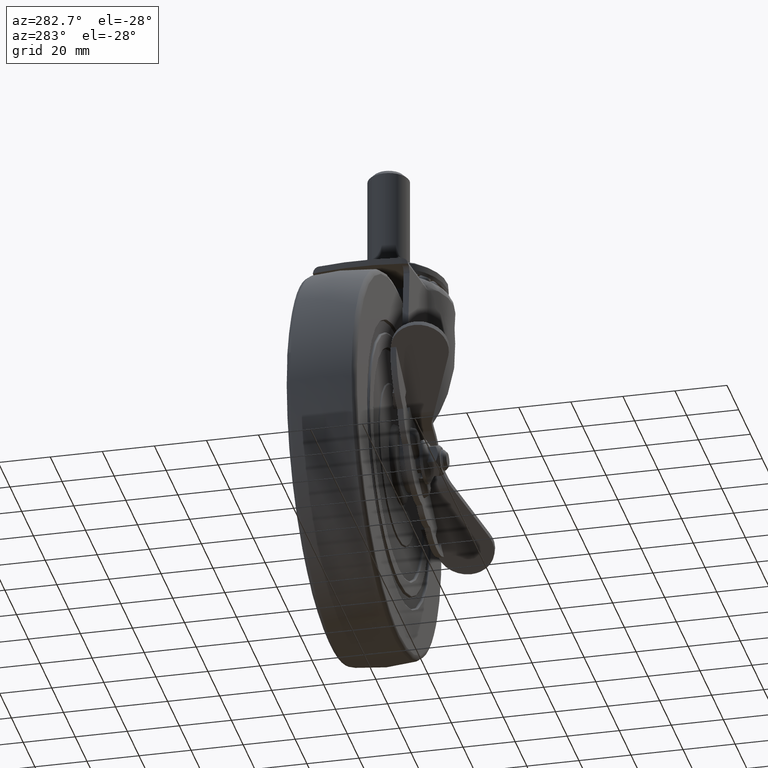
[diagram: clean part render]
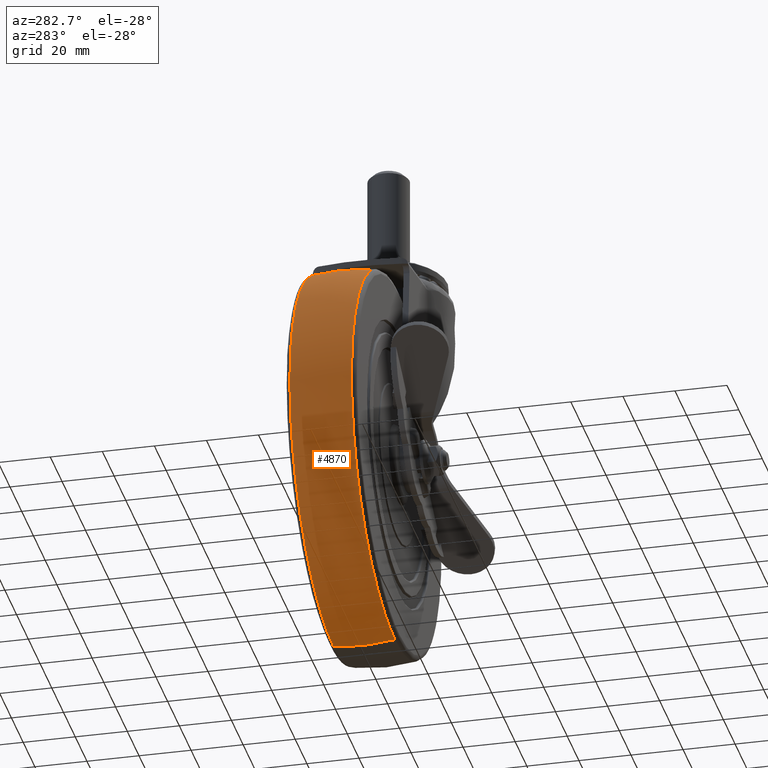
[diagram: same view with one face highlighted and labeled with its STEP entity id]
A machine part, auxiliary view. The second image highlights one B-rep face of the part: STEP entity #4870.
In plain terms, the highlighted face is a freeform B-spline surface patch.
Its self-contained STEP definition (entity closure, byte-faithful):
#4405=CARTESIAN_POINT('',(-72.849599156032269,11.838243067299739,12.950255501209700));
#4406=VERTEX_POINT('',#4405);
#4418=CARTESIAN_POINT('',(0.0,11.838235294117659,73.991710988502987));
#4419=VERTEX_POINT('',#4418);
#4420=CARTESIAN_POINT('',(0.0,11.838235294117659,73.991710988502987));
#4421=CARTESIAN_POINT('',(-4.972364198248593,11.838235294022830,73.992455660126851));
#4422=CARTESIAN_POINT('',(-11.825747100171050,11.838235382434201,73.298176337816230));
#4423=CARTESIAN_POINT('',(-21.492939625000130,11.838235683377270,70.934922847402675));
#4424=CARTESIAN_POINT('',(-28.219575876293419,11.838235986901330,68.551399667273586));
#4425=CARTESIAN_POINT('',(-35.012894742927628,11.838236401381110,65.296564418158596));
#4426=CARTESIAN_POINT('',(-41.949907558329052,11.838236926919571,61.169597458131378));
#4427=CARTESIAN_POINT('',(-49.421363708448823,11.838237660102401,55.412045624590277));
#4428=CARTESIAN_POINT('',(-57.204357024765017,11.838238682530459,47.383088622896317));
#4429=CARTESIAN_POINT('',(-63.291832157782167,11.838239774665739,38.806739787170102));
#4430=CARTESIAN_POINT('',(-67.976578224085500,11.838240933011621,29.710455125601051));
#4431=CARTESIAN_POINT('',(-71.026817071066063,11.838241996154689,21.361763169310080));
#4432=CARTESIAN_POINT('',(-72.379222191896801,11.838242730323611,15.596480490526160));
#4433=CARTESIAN_POINT('',(-72.849599156032269,11.838243067299739,12.950255501209700));
#4434=B_SPLINE_CURVE_WITH_KNOTS('',3,(#4420,#4421,#4422,#4423,#4424,#4425,#4426,#4427,#4428,#4429,#4430,#4431,#4432,#4433),.UNSPECIFIED.,.F.,.U.,(4,1,1,1,1,1,1,1,1,1,1,4),(0.000000067502953,14.916880654069271,20.561099074586441,29.833779894145099,36.284325806930497,43.138052450664830,54.023253342642818,64.505418401791843,76.600233026656085,85.469743249265591,95.145604344034425,103.208733813626790),.UNSPECIFIED.);
#4435=EDGE_CURVE('',#4419,#4406,#4434,.T.);
#4437=CARTESIAN_POINT('',(73.496826248795060,11.838279870516120,-8.543342112623503));
#4438=VERTEX_POINT('',#4437);
#4439=CARTESIAN_POINT('',(73.496826248795060,11.838279870516120,-8.543342112623503));
#4440=CARTESIAN_POINT('',(73.853365041651543,11.838279042435261,-5.476808539235538));
#4441=CARTESIAN_POINT('',(74.173176700747320,11.838277316283261,0.538409666041757));
#4442=CARTESIAN_POINT('',(73.547130818227402,11.838274409118929,9.632039315682183));
#4443=CARTESIAN_POINT('',(71.819786920556140,11.838271249238311,18.583931326996890));
#4444=CARTESIAN_POINT('',(68.735610255601884,11.838267578375611,28.023917447101379));
#4445=CARTESIAN_POINT('',(64.589476326411074,11.838263907848260,36.517125312062433));
#4446=CARTESIAN_POINT('',(59.128514312251511,11.838259946455290,44.805096258620573));
#4447=CARTESIAN_POINT('',(53.091370082209593,11.838256201726580,51.860705342247293));
#4448=CARTESIAN_POINT('',(45.312993350511910,11.838252026984041,58.793307688623671));
#4449=CARTESIAN_POINT('',(36.509606916323499,11.838247891444860,64.683001872607335));
#4450=CARTESIAN_POINT('',(26.917992840540109,11.838243965117270,69.176248031918874));
#4451=CARTESIAN_POINT('',(18.051893214940211,11.838240761533440,71.916218019219713));
#4452=CARTESIAN_POINT('',(9.261564288247701,11.838237900540429,73.586337412400411));
#4453=CARTESIAN_POINT('',(3.412169002708473,11.838236209349400,73.991862475627215));
#4454=CARTESIAN_POINT('',(0.0,11.838235294117659,73.991710988502987));
#4455=B_SPLINE_CURVE_WITH_KNOTS('',3,(#4439,#4440,#4441,#4442,#4443,#4444,#4445,#4446,#4447,#4448,#4449,#4450,#4451,#4452,#4453,#4454),.UNSPECIFIED.,.F.,.U.,(4,1,1,1,1,1,1,1,1,1,1,1,1,4),(0.000000038877104,9.261580314689496,18.035837008367348,27.297489217526689,36.559166707526103,47.770653875023307,55.569968060379402,66.293843317501228,75.555537554865566,86.767034018986948,97.978533992653965,107.240221721590400,114.552065428414490,124.788569328977100),.UNSPECIFIED.);
#4456=EDGE_CURVE('',#4438,#4419,#4455,.T.);
#4458=CARTESIAN_POINT('',(0.0,11.838254326075949,-73.991707722818305));
#4459=VERTEX_POINT('',#4458);
#4477=CARTESIAN_POINT('',(-29.644560757733181,11.838253559906700,-67.793604920096286));
#4478=VERTEX_POINT('',#4477);
#4479=CARTESIAN_POINT('',(-29.644560757733181,11.838253559906700,-67.793604920096286));
#4480=CARTESIAN_POINT('',(-26.588008820677260,11.838253725143110,-69.130322906910621));
#4481=CARTESIAN_POINT('',(-20.743273010408579,11.838253984419280,-71.227797368940102));
#4482=CARTESIAN_POINT('',(-10.802397658861260,11.838254257923040,-73.440368917400292));
#4483=CARTESIAN_POINT('',(-3.971515091292459,11.838254326110819,-73.991989955355109));
#4484=CARTESIAN_POINT('',(0.0,11.838254326075949,-73.991707722818305));
#4485=B_SPLINE_CURVE_WITH_KNOTS('',3,(#4479,#4480,#4481,#4482,#4483,#4484),.UNSPECIFIED.,.F.,.U.,(4,1,1,4),(4.463566E-009,10.008185377669440,18.586616195840719,30.501133716744590),.UNSPECIFIED.);
#4486=EDGE_CURVE('',#4478,#4459,#4485,.T.);
#4536=CARTESIAN_POINT('',(-72.849599156032269,11.838243067299739,12.950255501209700));
#4537=CARTESIAN_POINT('',(-73.637644264559597,11.838243646334920,8.519807754337323));
#4538=CARTESIAN_POINT('',(-74.368735935628706,11.838244771971430,-0.099335875076839));
#4539=CARTESIAN_POINT('',(-73.360790724009718,11.838246229902920,-11.278561939632141));
#4540=CARTESIAN_POINT('',(-71.173046724030357,11.838247472276970,-20.815564937046108));
#4541=CARTESIAN_POINT('',(-68.594361472122543,11.838248420531411,-28.102057657223561));
#4542=CARTESIAN_POINT('',(-65.274901482485049,11.838249326830780,-35.073007889337092));
#4543=CARTESIAN_POINT('',(-61.315117521340802,11.838250188299339,-41.705581216262722));
#4544=CARTESIAN_POINT('',(-56.775977850949239,11.838250958096820,-47.640378633901904));
#4545=CARTESIAN_POINT('',(-51.415155667389143,11.838251700539949,-53.372155756238087));
#4546=CARTESIAN_POINT('',(-45.230889331965557,11.838252405407999,-58.822620368159590));
#4547=CARTESIAN_POINT('',(-37.637333852052272,11.838253063972010,-63.929577449214669));
#4548=CARTESIAN_POINT('',(-32.118368665667298,11.838253421322090,-66.711908146424562));
#4549=CARTESIAN_POINT('',(-29.644560757733181,11.838253559906700,-67.793604920096286));
#4550=B_SPLINE_CURVE_WITH_KNOTS('',3,(#4536,#4537,#4538,#4539,#4540,#4541,#4542,#4543,#4544,#4545,#4546,#4547,#4548,#4549),.UNSPECIFIED.,.F.,.U.,(4,1,1,1,1,1,1,1,1,1,1,4),(0.000000069732323,13.499881046020700,25.842698985401380,33.556933835211353,42.814074737300167,48.985464961322918,56.699634893054188,65.956704016968700,71.356686005685617,80.228069869645651,90.642340118607521,98.742237184145324),.UNSPECIFIED.);
#4551=EDGE_CURVE('',#4406,#4478,#4550,.T.);
#4619=CARTESIAN_POINT('',(-19.487547503535630,-11.838235083390590,71.379330313375007));
#4620=VERTEX_POINT('',#4619);
#4631=CARTESIAN_POINT('',(0.0,-11.838242518919550,-73.991709748803032));
#4632=VERTEX_POINT('',#4631);
#4633=CARTESIAN_POINT('',(-19.487547503535630,-11.838235083390590,71.379330313375007));
#4634=CARTESIAN_POINT('',(-22.827759097678829,-11.838235130111100,70.467553805924879));
#4635=CARTESIAN_POINT('',(-29.379790656263360,-11.838235247596581,68.173880156237189));
#4636=CARTESIAN_POINT('',(-37.519869468419159,-11.838235463031010,63.966095637284717));
#4637=CARTESIAN_POINT('',(-44.766623535757759,-11.838235712595720,59.090657927241352));
#4638=CARTESIAN_POINT('',(-51.777920672505033,-11.838236014157150,53.198585993348367));
#4639=CARTESIAN_POINT('',(-57.717184294682873,-11.838236352752221,46.582003114529030));
#4640=CARTESIAN_POINT('',(-62.425737119721177,-11.838236694875670,39.895887596878083));
#4641=CARTESIAN_POINT('',(-66.049204095950586,-11.838237013814080,33.662464451124343));
#4642=CARTESIAN_POINT('',(-69.838619808775533,-11.838237448087369,25.174408574110810));
#4643=CARTESIAN_POINT('',(-72.598299635877083,-11.838237940069201,15.557657781665229));
#4644=CARTESIAN_POINT('',(-74.068729451525655,-11.838238488612941,4.834542639967519));
#4645=CARTESIAN_POINT('',(-74.055933382693226,-11.838238993046520,-5.026950617368466));
#4646=CARTESIAN_POINT('',(-72.730377855972151,-11.838239478053231,-14.509275819687369));
#4647=CARTESIAN_POINT('',(-70.510809951637853,-11.838239910358951,-22.961754088099038));
#4648=CARTESIAN_POINT('',(-67.384966038561146,-11.838240320200580,-30.975482006864119));
#4649=CARTESIAN_POINT('',(-63.599050303065063,-11.838240683315069,-38.076035996618891));
#4650=CARTESIAN_POINT('',(-59.022987549326523,-11.838241030001770,-44.855815455882542));
#4651=CARTESIAN_POINT('',(-53.567441923780073,-11.838241360915330,-51.327630218061827));
#4652=CARTESIAN_POINT('',(-47.236528251795541,-11.838241658855001,-57.155273058953270));
#4653=CARTESIAN_POINT('',(-41.082202777061639,-11.838241889063539,-61.658688577745771));
#4654=CARTESIAN_POINT('',(-34.550365019328282,-11.838242090043749,-65.590887804384792));
#4655=CARTESIAN_POINT('',(-26.370179840662789,-11.838242284391900,-69.394222456029880));
#4656=CARTESIAN_POINT('',(-17.199817427740761,-11.838242426606220,-72.178811359659562));
#4657=CARTESIAN_POINT('',(-8.171254204100041,-11.838242503584180,-73.688038559451400));
#4658=CARTESIAN_POINT('',(-2.769908249093020,-11.838242518991160,-73.991766939402339));
#4659=CARTESIAN_POINT('',(0.0,-11.838242518919550,-73.991709748803032));
#4660=B_SPLINE_CURVE_WITH_KNOTS('',3,(#4633,#4634,#4635,#4636,#4637,#4638,#4639,#4640,#4641,#4642,#4643,#4644,#4645,#4646,#4647,#4648,#4649,#4650,#4651,#4652,#4653,#4654,#4655,#4656,#4657,#4658,#4659),.UNSPECIFIED.,.F.,.U.,(4,1,1,1,1,1,1,1,1,1,1,1,1,1,1,1,1,1,1,1,1,1,1,1,4),(0.000000161541720,10.387257343393690,20.774503490091600,27.422428372504701,36.563252204033212,48.197072499826682,54.013967371360337,61.077342645367679,69.802718822897504,81.852022721892183,90.992866822577966,102.211141464002910,111.351744484536100,119.661699078480790,128.387020853299700,137.112292239185790,143.760235714910890,152.901056492701510,162.457384900982900,169.520756078281290,175.753164107752890,185.309463770938290,196.527797601290500,204.422183340728110,212.731913238814710),.UNSPECIFIED.);
#4661=EDGE_CURVE('',#4620,#4632,#4660,.T.);
#4663=CARTESIAN_POINT('',(73.496827004834344,-11.838275480224100,-8.543342132971789));
#4664=VERTEX_POINT('',#4663);
#4682=CARTESIAN_POINT('',(73.152028383067346,-11.838269994625740,11.115447494822860));
#4683=VERTEX_POINT('',#4682);
#4684=CARTESIAN_POINT('',(73.496827004834344,-11.838275480224100,-8.543342132971789));
#4685=CARTESIAN_POINT('',(73.888322244114462,-11.838274656815560,-5.176629243321980));
#4686=CARTESIAN_POINT('',(74.197666361045862,-11.838272929678750,1.405002720056938));
#4687=CARTESIAN_POINT('',(73.630464479604328,-11.838270982004630,7.967608932743399));
#4688=CARTESIAN_POINT('',(73.152028383067346,-11.838269994625740,11.115447494822860));
#4689=B_SPLINE_CURVE_WITH_KNOTS('',3,(#4684,#4685,#4686,#4687,#4688),.UNSPECIFIED.,.F.,.U.,(4,1,4),(2.671786E-009,10.168183646124060,19.720140481566379),.UNSPECIFIED.);
#4690=EDGE_CURVE('',#4664,#4683,#4689,.T.);
#4778=CARTESIAN_POINT('',(0.0,-11.838234953350200,73.991711046974999));
#4779=VERTEX_POINT('',#4778);
#4780=CARTESIAN_POINT('',(73.152028383067346,-11.838269994625740,11.115447494822860));
#4781=CARTESIAN_POINT('',(72.576786260980640,-11.838268818251670,14.902616461581911));
#4782=CARTESIAN_POINT('',(70.836214445783725,-11.838266346141930,22.387240820781741));
#4783=CARTESIAN_POINT('',(66.931644850784082,-11.838262748361540,32.057466650226480));
#4784=CARTESIAN_POINT('',(62.530121299791148,-11.838259556750801,39.800049278567620));
#4785=CARTESIAN_POINT('',(57.599740400740423,-11.838256462970421,46.713608041296553));
#4786=CARTESIAN_POINT('',(52.352196847408663,-11.838253598260660,52.507133807483100));
#4787=CARTESIAN_POINT('',(45.478512047631803,-11.838250259745250,58.582979575085922));
#4788=CARTESIAN_POINT('',(37.367586473344147,-11.838246739378370,64.220648809370402));
#4789=CARTESIAN_POINT('',(27.969610700242882,-11.838243207764400,68.752139360779267));
#4790=CARTESIAN_POINT('',(18.455807308247561,-11.838240044177139,71.835148248776648));
#4791=CARTESIAN_POINT('',(9.576509733161016,-11.838237401152190,73.580976605963755));
#4792=CARTESIAN_POINT('',(3.146575959925033,-11.838235720680920,73.991812237320360));
#4793=CARTESIAN_POINT('',(0.0,-11.838234953350200,73.991711046974999));
#4794=B_SPLINE_CURVE_WITH_KNOTS('',3,(#4780,#4781,#4782,#4783,#4784,#4785,#4786,#4787,#4788,#4789,#4790,#4791,#4792,#4793),.UNSPECIFIED.,.F.,.U.,(4,1,1,1,1,1,1,1,1,1,1,4),(0.000000072821791,11.491805407988050,22.983696195685258,31.192183546863419,38.169397984243567,48.429971735640869,54.586275150099823,65.667711098925935,77.980417478829878,85.778482743301694,95.628621008207219,105.068352518510810),.UNSPECIFIED.);
#4795=EDGE_CURVE('',#4683,#4779,#4794,.T.);
#4797=CARTESIAN_POINT('',(0.0,-11.838234953350200,73.991711046974999));
#4798=CARTESIAN_POINT('',(-3.800258685204576,-11.838234953338279,73.991950072904402));
#4799=CARTESIAN_POINT('',(-10.373566939306549,-11.838234978618390,73.484099404003572));
#4800=CARTESIAN_POINT('',(-16.812318801336382,-11.838235047031329,72.109751054331738));
#4801=CARTESIAN_POINT('',(-19.487547503535630,-11.838235083390590,71.379330313375007));
#4802=B_SPLINE_CURVE_WITH_KNOTS('',3,(#4797,#4798,#4799,#4800,#4801),.UNSPECIFIED.,.F.,.U.,(4,1,4),(2.668799E-009,11.400736759329011,19.720195512827640),.UNSPECIFIED.);
#4803=EDGE_CURVE('',#4779,#4620,#4802,.T.);
#4809=CARTESIAN_POINT('',(73.288543493720610,-13.001275285669470,-8.519182744574898));
#4810=CARTESIAN_POINT('',(75.729626795122428,0.000003545394337,-8.802938346037413));
#4811=CARTESIAN_POINT('',(73.288542208300740,13.001282131850179,-8.519182595155547));
#4812=CARTESIAN_POINT('',(73.782024112018192,-13.001275285669461,-4.273884006213540));
#4813=CARTESIAN_POINT('',(76.239544188384670,0.000003545394338,-4.416237863751864));
#4814=CARTESIAN_POINT('',(73.782022817943115,13.001282131850171,-4.273883931253184));
#4815=CARTESIAN_POINT('',(73.782024112018206,-13.001275285669463,1.734723E-015));
#4816=CARTESIAN_POINT('',(76.239544188384698,0.000003545394335,1.734723E-015));
#4817=CARTESIAN_POINT('',(73.782022817943130,13.001282131850170,1.734723E-015));
#4818=CARTESIAN_POINT('',(73.782024112018206,-13.001275285669466,73.782024112018206));
#4819=CARTESIAN_POINT('',(76.239544188384670,0.000003545394335,76.239544188384670));
#4820=CARTESIAN_POINT('',(73.782022817943115,13.001282131850168,73.782022817943115));
#4821=CARTESIAN_POINT('',(0.0,-13.001275285669463,73.782024112018206));
#4822=CARTESIAN_POINT('',(0.0,0.000003545394335,76.239544188384698));
#4823=CARTESIAN_POINT('',(0.0,13.001282131850170,73.782022817943130));
#4824=CARTESIAN_POINT('',(-73.782024112018206,-13.001275285669466,73.782024112018206));
#4825=CARTESIAN_POINT('',(-76.239544188384670,0.000003545394335,76.239544188384670));
#4826=CARTESIAN_POINT('',(-73.782022817943115,13.001282131850168,73.782022817943115));
#4827=CARTESIAN_POINT('',(-73.782024112018206,-13.001275285669463,1.734723E-015));
#4828=CARTESIAN_POINT('',(-76.239544188384698,0.000003545394335,1.734723E-015));
#4829=CARTESIAN_POINT('',(-73.782022817943130,13.001282131850170,1.734723E-015));
#4830=CARTESIAN_POINT('',(-73.782024112018206,-13.001275285669466,-73.782024112018206));
#4831=CARTESIAN_POINT('',(-76.239544188384670,0.000003545394335,-76.239544188384670));
#4832=CARTESIAN_POINT('',(-73.782022817943115,13.001282131850168,-73.782022817943115));
#4833=CARTESIAN_POINT('',(0.0,-13.001275285669463,-73.782024112018206));
#4834=CARTESIAN_POINT('',(0.0,0.000003545394335,-76.239544188384698));
#4835=CARTESIAN_POINT('',(0.0,13.001282131850170,-73.782022817943130));
#4843=(BOUNDED_SURFACE()B_SPLINE_SURFACE(2,2,((#4809,#4812,#4815,#4818,#4821,#4824,#4827,#4830,#4833),(#4810,#4813,#4816,#4819,#4822,#4825,#4828,#4831,#4834),(#4811,#4814,#4817,#4820,#4823,#4826,#4829,#4832,#4835)),.UNSPECIFIED.,.F.,.F.,.U.)B_SPLINE_SURFACE_WITH_KNOTS((3,3),(3,2,2,2,3),(0.0,26.230760638616410),(0.0,9.941123423073893,134.205192135002390,258.469260846930920,382.733329558859510),.UNSPECIFIED.)GEOMETRIC_REPRESENTATION_ITEM()RATIONAL_B_SPLINE_SURFACE(((0.894753405890069,0.913157803991743,0.935067800861204,0.661192782858150,0.935067800861204,0.661192782858150,0.935067800861204,0.661192782858150,0.935067800861204),(0.879185000660446,0.897269168488875,0.918797938857719,0.649688253106516,0.918797938857719,0.649688253106516,0.918797938857719,0.649688253106516,0.918797938857719),(0.894753414233211,0.913157812506496,0.935067809580258,0.661192789023452,0.935067809580258,0.661192789023452,0.935067809580258,0.661192789023452,0.935067809580258)))REPRESENTATION_ITEM('')SURFACE());
#4844=ORIENTED_EDGE('',*,*,#4456,.T.);
#4845=ORIENTED_EDGE('',*,*,#4435,.T.);
#4846=ORIENTED_EDGE('',*,*,#4551,.T.);
#4847=ORIENTED_EDGE('',*,*,#4486,.T.);
#4848=CARTESIAN_POINT('',(0.0,-11.838242518919550,-73.991709748803032));
#4849=CARTESIAN_POINT('',(0.0,-7.808139889435399,-74.683641697643438));
#4850=CARTESIAN_POINT('',(0.0,0.125705909964205,-75.337389417436498));
#4851=CARTESIAN_POINT('',(0.0,8.052381441555376,-74.641613108862956));
#4852=CARTESIAN_POINT('',(0.0,11.838254326075949,-73.991707722818305));
#4853=B_SPLINE_CURVE_WITH_KNOTS('',3,(#4848,#4849,#4850,#4851,#4852),.UNSPECIFIED.,.F.,.U.,(4,1,4),(5.058919E-009,12.267148645840280,23.790863878914490),.UNSPECIFIED.);
#4854=EDGE_CURVE('',#4632,#4459,#4853,.T.);
#4855=ORIENTED_EDGE('',*,*,#4854,.F.);
#4856=ORIENTED_EDGE('',*,*,#4661,.F.);
#4857=ORIENTED_EDGE('',*,*,#4803,.F.);
#4858=ORIENTED_EDGE('',*,*,#4795,.F.);
#4859=ORIENTED_EDGE('',*,*,#4690,.F.);
#4860=CARTESIAN_POINT('',(73.496827004834344,-11.838275480224100,-8.543342132971789));
#4861=CARTESIAN_POINT('',(74.100675168952108,-8.296644197642697,-8.613534477662617));
#4862=CARTESIAN_POINT('',(74.833546623554113,-0.377094474882831,-8.698724720921577));
#4863=CARTESIAN_POINT('',(74.225807877150316,7.563912967759544,-8.628080161101353));
#4864=CARTESIAN_POINT('',(73.496826248795060,11.838279870516120,-8.543342112623503));
#4865=B_SPLINE_CURVE_WITH_KNOTS('',3,(#4860,#4861,#4862,#4863,#4864),.UNSPECIFIED.,.F.,.U.,(4,1,4),(5.058013E-009,10.780270660801790,23.790923239912999),.UNSPECIFIED.);
#4866=EDGE_CURVE('',#4664,#4438,#4865,.T.);
#4867=ORIENTED_EDGE('',*,*,#4866,.T.);
#4868=EDGE_LOOP('',(#4844,#4845,#4846,#4847,#4855,#4856,#4857,#4858,#4859,#4867));
#4869=FACE_OUTER_BOUND('',#4868,.T.);
#4870=ADVANCED_FACE('',(#4869),#4843,.T.);